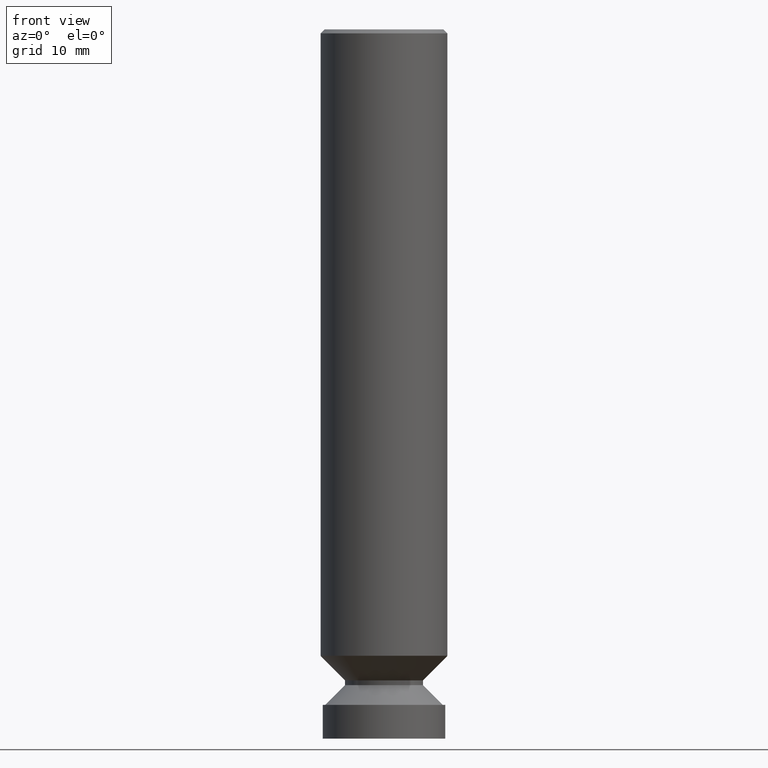
[diagram: clean part render]
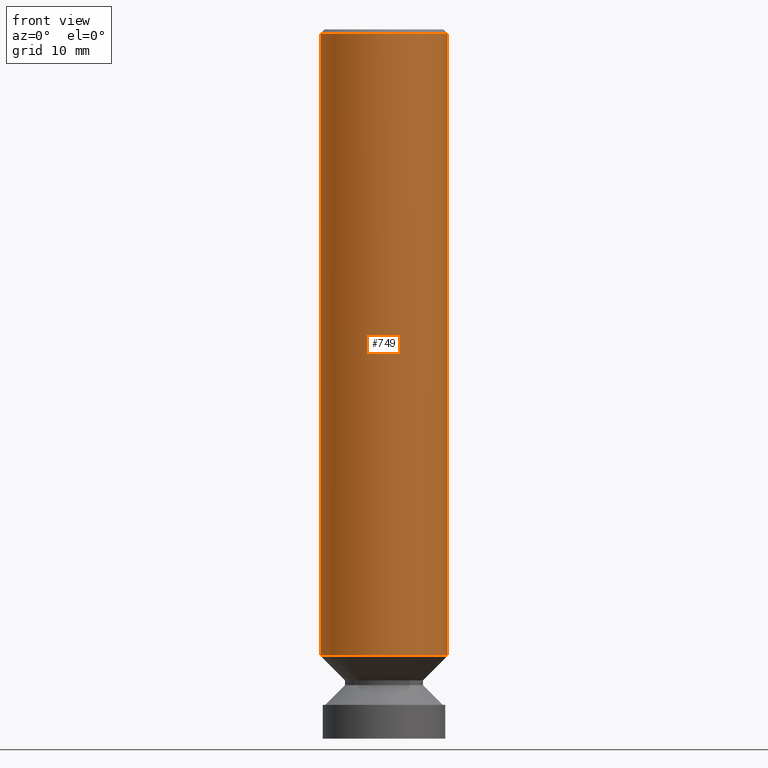
[diagram: same view with one face highlighted and labeled with its STEP entity id]
A machine part, front view. The second image highlights one B-rep face of the part: STEP entity #749.
In plain terms, the highlighted cylindrical surface (partial cylindrical patch) has radius 7.9375 mm, axis along (-0, 0, 1).
Its self-contained STEP definition (entity closure, byte-faithful):
#14 = LINE ( 'NONE', #134, #791 ) ;
#62 = VERTEX_POINT ( 'NONE', #379 ) ;
#65 = DIRECTION ( 'NONE',  ( -2.445468806185136877E-29, 3.491481338843145188E-15, 1.000000000000000000 ) ) ;
#94 = EDGE_CURVE ( 'NONE', #280, #276, #14, .T. ) ;
#104 = CARTESIAN_POINT ( 'NONE',  ( 0.3125000000000000000, -2.213735251080466911E-15, -0.02000000000000009756 ) ) ;
#134 = CARTESIAN_POINT ( 'NONE',  ( 0.3125000000000001665, -2.182175836776959530E-15, 1.523805242436230636E-29 ) ) ;
#148 = VERTEX_POINT ( 'NONE', #785 ) ;
#162 = CIRCLE ( 'NONE', #199, 0.3125000000000000000 ) ;
#191 = ORIENTED_EDGE ( 'NONE', *, *, #691, .F. ) ;
#199 = AXIS2_PLACEMENT_3D ( 'NONE', #748, #566, #495 ) ;
#207 = CARTESIAN_POINT ( 'NONE',  ( 0.000000000000000000, 0.000000000000000000, 0.000000000000000000 ) ) ;
#276 = VERTEX_POINT ( 'NONE', #104 ) ;
#280 = VERTEX_POINT ( 'NONE', #683 ) ;
#343 = AXIS2_PLACEMENT_3D ( 'NONE', #510, #736, #428 ) ;
#367 = CARTESIAN_POINT ( 'NONE',  ( -0.3125000000000001665, 2.220446049250314264E-15, -1.537167215704658792E-29 ) ) ;
#378 = CYLINDRICAL_SURFACE ( 'NONE', #704, 0.3125000000000001665 ) ;
#379 = CARTESIAN_POINT ( 'NONE',  ( -0.3125000000000003331, -3.210464772715377996E-15, -3.090949362120981370 ) ) ;
#428 = DIRECTION ( 'NONE',  ( 1.000000000000000000, -6.982962677686268288E-15, 0.000000000000000000 ) ) ;
#436 = LINE ( 'NONE', #367, #805 ) ;
#455 = CIRCLE ( 'NONE', #343, 0.3125000000000003331 ) ;
#495 = DIRECTION ( 'NONE',  ( 1.000000000000000000, -6.982962677686265133E-15, 0.000000000000000000 ) ) ;
#510 = CARTESIAN_POINT ( 'NONE',  ( 7.558820246564705853E-29, -1.079199201715452990E-14, -3.090949362120981370 ) ) ;
#521 = ORIENTED_EDGE ( 'NONE', *, *, #94, .T. ) ;
#530 = EDGE_LOOP ( 'NONE', ( #808, #737, #521, #191 ) ) ;
#531 = DIRECTION ( 'NONE',  ( -2.445468806185136597E-29, 3.491481338843145583E-15, 1.000000000000000000 ) ) ;
#566 = DIRECTION ( 'NONE',  ( -2.445468806185136597E-29, 3.491481338843145583E-15, 1.000000000000000000 ) ) ;
#661 = EDGE_CURVE ( 'NONE', #62, #280, #455, .T. ) ;
#672 = EDGE_CURVE ( 'NONE', #62, #148, #436, .T. ) ;
#679 = FACE_OUTER_BOUND ( 'NONE', #530, .T. ) ;
#683 = CARTESIAN_POINT ( 'NONE',  ( 0.3125000000000003331, -1.297416785393149140E-14, -3.090949362120981370 ) ) ;
#688 = DIRECTION ( 'NONE',  ( -2.445468806185136877E-29, 3.491481338843145188E-15, 1.000000000000000000 ) ) ;
#691 = EDGE_CURVE ( 'NONE', #148, #276, #162, .T. ) ;
#704 = AXIS2_PLACEMENT_3D ( 'NONE', #207, #531, #774 ) ;
#736 = DIRECTION ( 'NONE',  ( -2.445468806185136597E-29, 3.491481338843145583E-15, 1.000000000000000000 ) ) ;
#737 = ORIENTED_EDGE ( 'NONE', *, *, #661, .T. ) ;
#748 = CARTESIAN_POINT ( 'NONE',  ( 4.890937612370297681E-31, -6.982962677686324889E-17, -0.02000000000000009756 ) ) ;
#749 = ADVANCED_FACE ( 'NONE', ( #679 ), #378, .T. ) ;
#774 = DIRECTION ( 'NONE',  ( 1.000000000000000000, -6.982962677686266711E-15, 4.876176775795935232E-29 ) ) ;
#785 = CARTESIAN_POINT ( 'NONE',  ( -0.3125000000000000000, 2.112346210000095049E-15, -0.02000000000000009756 ) ) ;
#791 = VECTOR ( 'NONE', #65, 39.37007874015748143 ) ;
#805 = VECTOR ( 'NONE', #688, 39.37007874015748143 ) ;
#808 = ORIENTED_EDGE ( 'NONE', *, *, #672, .F. ) ;